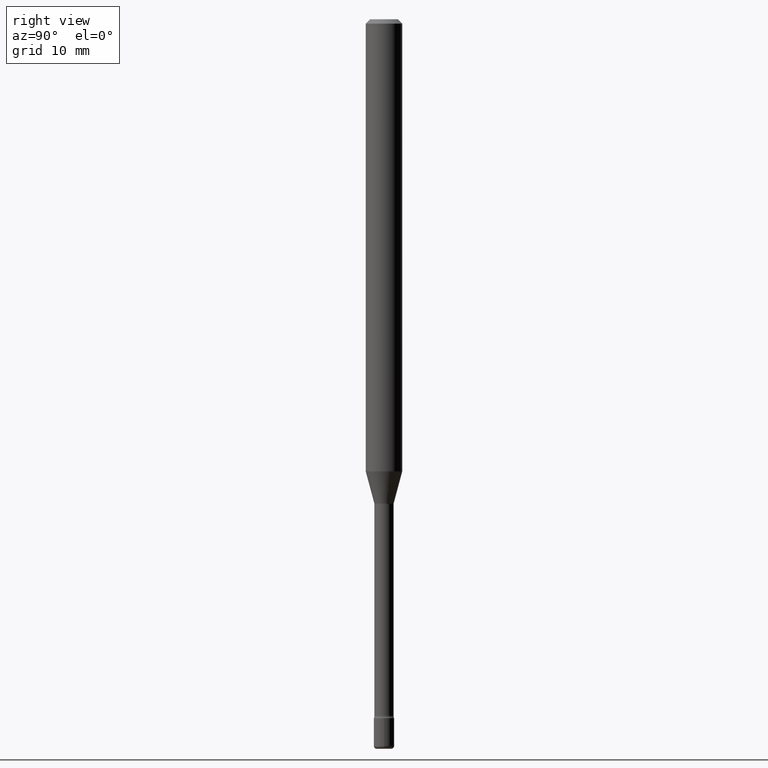
[diagram: clean part render]
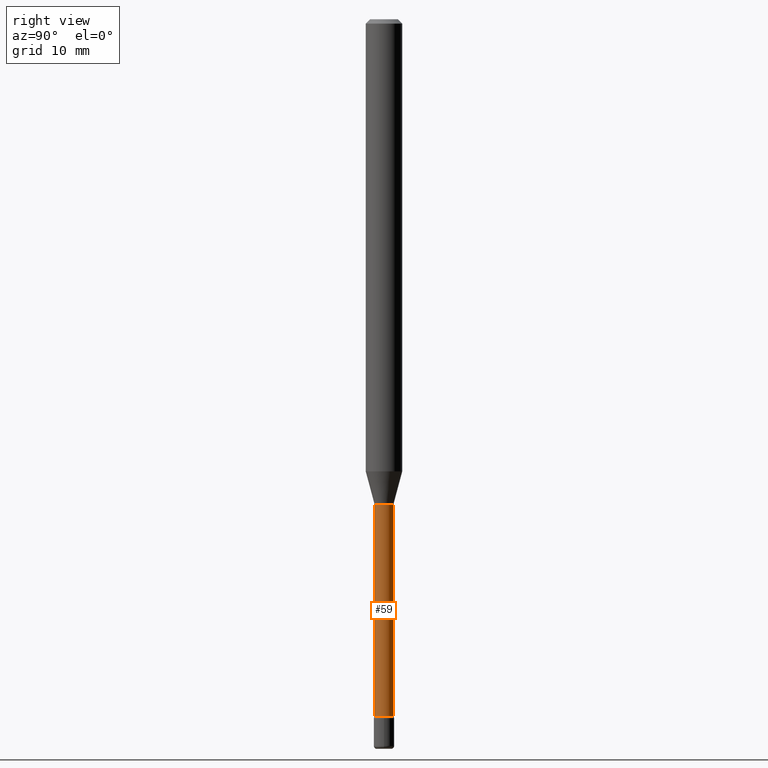
[diagram: same view with one face highlighted and labeled with its STEP entity id]
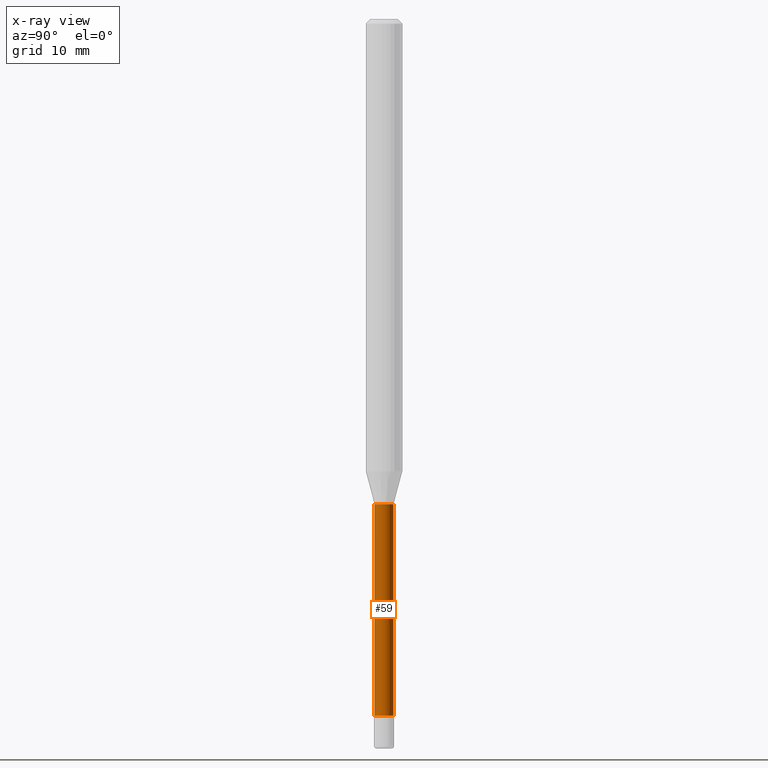
[diagram: x-ray of the same camera — body ghosted, the highlighted face saturated]
A machine part, right view. The second image highlights one B-rep face of the part: STEP entity #59.
The next image is the same camera in x-ray: the body ghosted, the highlighted face saturated — about 0% of this face is hidden behind the body in this view.
In plain terms, the highlighted cylindrical surface (edge-blend (fillet) strip) has radius 0.8357 mm, axis along (-0, 0, 1).
Its self-contained STEP definition (entity closure, byte-faithful):
#2 = EDGE_CURVE ( 'NONE', #373, #99, #375, .T. ) ;
#32 = AXIS2_PLACEMENT_3D ( 'NONE', #517, #202, #165 ) ;
#36 = EDGE_CURVE ( 'NONE', #388, #99, #64, .T. ) ;
#46 = AXIS2_PLACEMENT_3D ( 'NONE', #448, #218, #179 ) ;
#59 = ADVANCED_FACE ( 'NONE', ( #176 ), #269, .T. ) ;
#60 = ORIENTED_EDGE ( 'NONE', *, *, #36, .F. ) ;
#64 = CIRCLE ( 'NONE', #570, 0.03289999999999999869 ) ;
#88 = EDGE_LOOP ( 'NONE', ( #235, #192, #60, #552 ) ) ;
#99 = VERTEX_POINT ( 'NONE', #263 ) ;
#125 = EDGE_CURVE ( 'NONE', #396, #388, #410, .T. ) ;
#159 = VECTOR ( 'NONE', #169, 39.37007874015748143 ) ;
#165 = DIRECTION ( 'NONE',  ( -6.982962677686266711E-15, -1.000000000000000000, 0.000000000000000000 ) ) ;
#169 = DIRECTION ( 'NONE',  ( -2.445361929537154917E-29, 3.491634392286096321E-15, 1.000000000000000000 ) ) ;
#170 = VECTOR ( 'NONE', #197, 39.37007874015748143 ) ;
#176 = FACE_OUTER_BOUND ( 'NONE', #88, .T. ) ;
#179 = DIRECTION ( 'NONE',  ( -6.982962677686265133E-15, -1.000000000000000000, 3.491634392286094348E-15 ) ) ;
#192 = ORIENTED_EDGE ( 'NONE', *, *, #2, .T. ) ;
#197 = DIRECTION ( 'NONE',  ( -2.445361929537154917E-29, 3.491634392286096321E-15, 1.000000000000000000 ) ) ;
#202 = DIRECTION ( 'NONE',  ( -2.445361929537154917E-29, 3.491634392286096321E-15, 1.000000000000000000 ) ) ;
#218 = DIRECTION ( 'NONE',  ( -2.445361929537154917E-29, 3.491634392286096321E-15, 1.000000000000000000 ) ) ;
#235 = ORIENTED_EDGE ( 'NONE', *, *, #549, .T. ) ;
#240 = CARTESIAN_POINT ( 'NONE',  ( -2.297394720958784485E-16, -0.03290000000000004726, 5.929481703974587272E-16 ) ) ;
#263 = CARTESIAN_POINT ( 'NONE',  ( 2.337685600651316727E-16, 0.03289999999999419777, -1.661974787463811332 ) ) ;
#269 = CYLINDRICAL_SURFACE ( 'NONE', #46, 0.03290000000000004726 ) ;
#299 = CARTESIAN_POINT ( 'NONE',  ( 2.412292587906125932E-16, 0.03289999999999175528, -2.387345589506696619 ) ) ;
#334 = CARTESIAN_POINT ( 'NONE',  ( 2.337685600650732477E-16, 0.03290000000000004726, 3.631986273850333500E-16 ) ) ;
#350 = CIRCLE ( 'NONE', #32, 0.03290000000000008890 ) ;
#356 = CARTESIAN_POINT ( 'NONE',  ( -2.297394720958374770E-16, -0.03290000000000579961, -1.661974787463811332 ) ) ;
#373 = VERTEX_POINT ( 'NONE', #299 ) ;
#375 = LINE ( 'NONE', #334, #159 ) ;
#383 = DIRECTION ( 'NONE',  ( -2.445361929537154917E-29, 3.491634392286096321E-15, 1.000000000000000000 ) ) ;
#386 = DIRECTION ( 'NONE',  ( -6.982962677686265133E-15, -1.000000000000000000, 0.000000000000000000 ) ) ;
#388 = VERTEX_POINT ( 'NONE', #356 ) ;
#396 = VERTEX_POINT ( 'NONE', #400 ) ;
#400 = CARTESIAN_POINT ( 'NONE',  ( -2.297394720958204179E-16, -0.03290000000000842945, -2.387345589506696619 ) ) ;
#410 = LINE ( 'NONE', #240, #170 ) ;
#448 = CARTESIAN_POINT ( 'NONE',  ( -1.169113584055446105E-44, 1.669184350826100908E-30, 4.780733988912460139E-16 ) ) ;
#467 = CARTESIAN_POINT ( 'NONE',  ( 4.064129873114609008E-29, -5.803008327021018948E-15, -1.661974787463811332 ) ) ;
#517 = CARTESIAN_POINT ( 'NONE',  ( 5.837924017228111976E-29, -8.335737966594106856E-15, -2.387345589506696619 ) ) ;
#549 = EDGE_CURVE ( 'NONE', #396, #373, #350, .T. ) ;
#552 = ORIENTED_EDGE ( 'NONE', *, *, #125, .F. ) ;
#570 = AXIS2_PLACEMENT_3D ( 'NONE', #467, #383, #386 ) ;